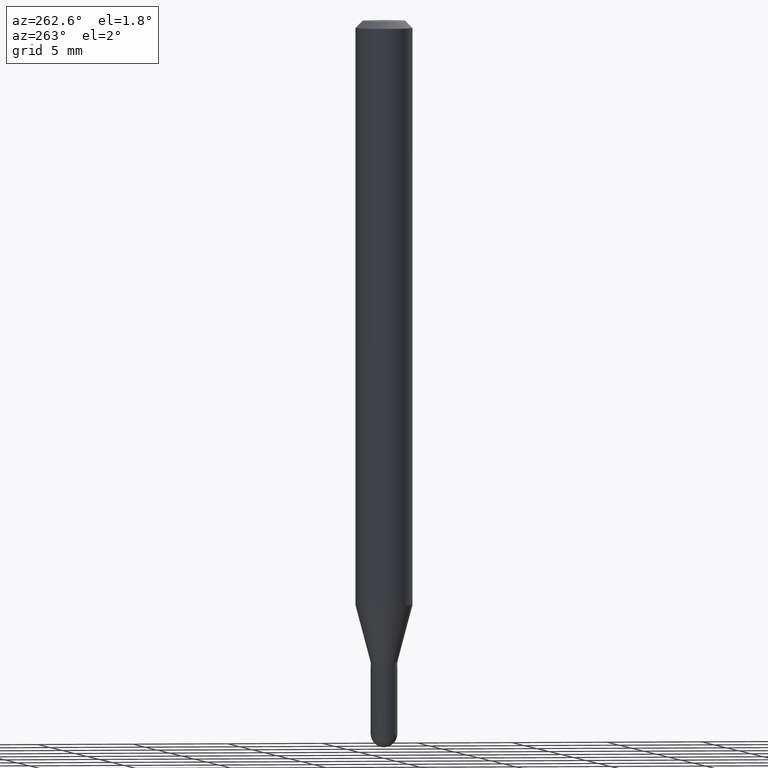
[diagram: clean part render]
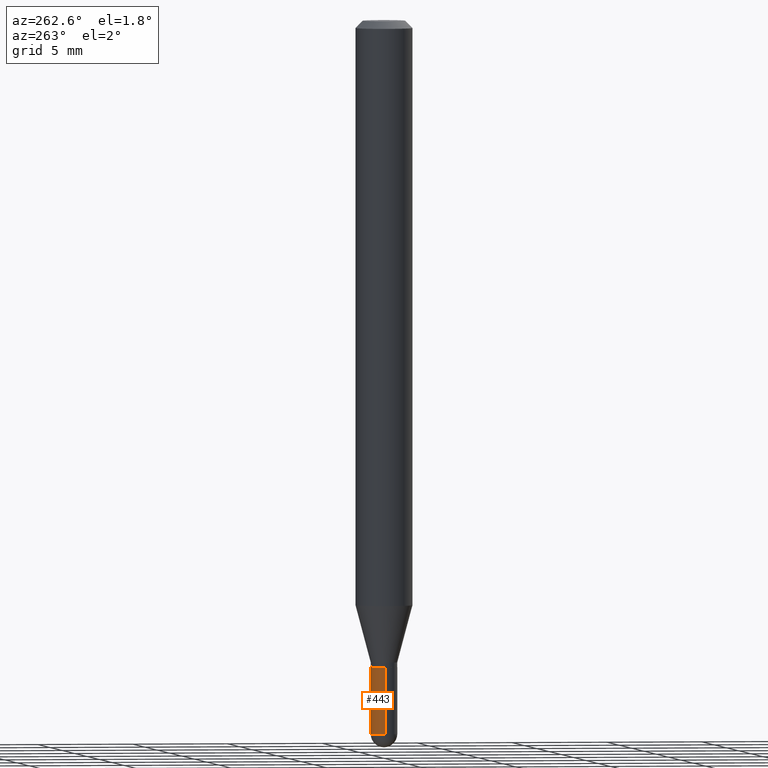
[diagram: same view with one face highlighted and labeled with its STEP entity id]
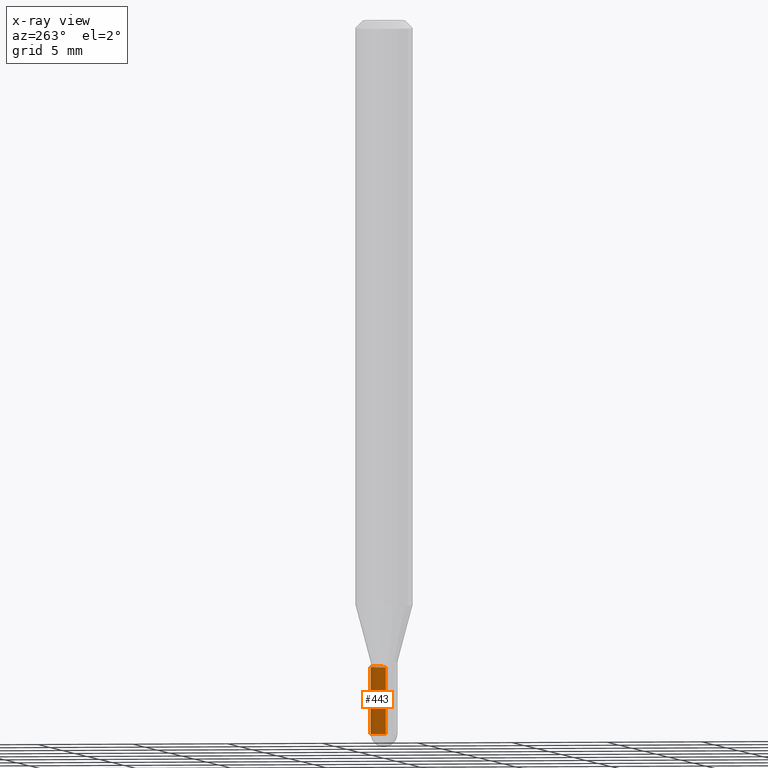
[diagram: x-ray of the same camera — body ghosted, the highlighted face saturated]
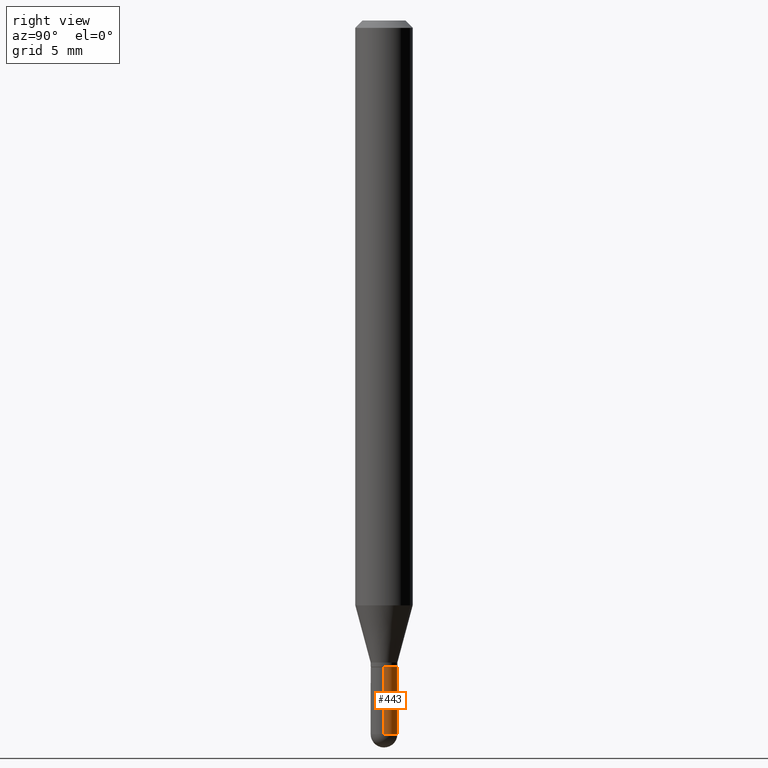
[diagram: same view with one face highlighted and labeled with its STEP entity id]
A machine part, auxiliary view. The second image highlights one B-rep face of the part: STEP entity #443.
The next image is the same camera in x-ray: the body ghosted, the highlighted face saturated — about 0% of this face is hidden behind the body in this view.
A second angle (right view) of the same face is appended — the face is thin or edge-on in the first view.
In plain terms, the highlighted cylindrical surface (edge-blend (fillet) strip) has radius 0.6998 mm, axis along (-0, 0, 1).
Its self-contained STEP definition (entity closure, byte-faithful):
#15 = VERTEX_POINT ( 'NONE', #325 ) ;
#26 = ORIENTED_EDGE ( 'NONE', *, *, #152, .T. ) ;
#34 = CIRCLE ( 'NONE', #88, 0.02755000000000000851 ) ;
#36 = DIRECTION ( 'NONE',  ( 1.000000000000000000, -6.982962677686265922E-15, 4.876176775795935793E-29 ) ) ;
#57 = VECTOR ( 'NONE', #207, 39.37007874015748143 ) ;
#61 = DIRECTION ( 'NONE',  ( 1.000000000000000000, -6.982962677686256455E-15, 0.000000000000000000 ) ) ;
#63 = AXIS2_PLACEMENT_3D ( 'NONE', #95, #413, #61 ) ;
#68 = EDGE_CURVE ( 'NONE', #125, #299, #323, .T. ) ;
#70 = VERTEX_POINT ( 'NONE', #435 ) ;
#71 = CARTESIAN_POINT ( 'NONE',  ( 3.591293215323181808E-29, -5.127414920158100475E-15, -1.468549999999999800 ) ) ;
#88 = AXIS2_PLACEMENT_3D ( 'NONE', #71, #349, #112 ) ;
#95 = CARTESIAN_POINT ( 'NONE',  ( 3.254185340390560677E-29, -4.646114217598572614E-15, -1.330699999999999772 ) ) ;
#112 = DIRECTION ( 'NONE',  ( 1.000000000000000000, -6.982962677686254878E-15, 0.000000000000000000 ) ) ;
#117 = DIRECTION ( 'NONE',  ( -2.445468806185136597E-29, 3.491481338843145583E-15, 1.000000000000000000 ) ) ;
#125 = VERTEX_POINT ( 'NONE', #439 ) ;
#146 = ORIENTED_EDGE ( 'NONE', *, *, #334, .F. ) ;
#152 = EDGE_CURVE ( 'NONE', #70, #125, #403, .T. ) ;
#157 = CARTESIAN_POINT ( 'NONE',  ( 3.591293215323181808E-29, -5.127414920158100475E-15, -1.468549999999999800 ) ) ;
#162 = ORIENTED_EDGE ( 'NONE', *, *, #253, .F. ) ;
#207 = DIRECTION ( 'NONE',  ( -2.445468806185136877E-29, 3.491481338843145188E-15, 1.000000000000000000 ) ) ;
#221 = CYLINDRICAL_SURFACE ( 'NONE', #313, 0.02755000000000000851 ) ;
#225 = CARTESIAN_POINT ( 'NONE',  ( 0.000000000000000000, 0.000000000000000000, 0.000000000000000000 ) ) ;
#231 = VECTOR ( 'NONE', #275, 39.37007874015748143 ) ;
#248 = LINE ( 'NONE', #409, #57 ) ;
#253 = EDGE_CURVE ( 'NONE', #448, #299, #297, .T. ) ;
#268 = CARTESIAN_POINT ( 'NONE',  ( 0.02755000000000000157, -4.838494839368829407E-15, -1.330699999999999772 ) ) ;
#271 = DIRECTION ( 'NONE',  ( 1.000000000000000000, -6.982962677686254878E-15, 0.000000000000000000 ) ) ;
#272 = DIRECTION ( 'NONE',  ( -2.445468806185136597E-29, 3.491481338843145583E-15, 1.000000000000000000 ) ) ;
#275 = DIRECTION ( 'NONE',  ( -2.445468806185136877E-29, 3.491481338843145188E-15, 1.000000000000000000 ) ) ;
#297 = CIRCLE ( 'NONE', #63, 0.02755000000000000157 ) ;
#299 = VERTEX_POINT ( 'NONE', #451 ) ;
#313 = AXIS2_PLACEMENT_3D ( 'NONE', #225, #272, #36 ) ;
#319 = CARTESIAN_POINT ( 'NONE',  ( -0.02755000000000000851, 1.957545237019076617E-16, -1.355166617365226740E-30 ) ) ;
#323 = LINE ( 'NONE', #319, #231 ) ;
#325 = CARTESIAN_POINT ( 'NONE',  ( 0.02755000000000000851, -5.079145190648592548E-15, -1.468549999999999800 ) ) ;
#334 = EDGE_CURVE ( 'NONE', #15, #448, #248, .T. ) ;
#340 = ORIENTED_EDGE ( 'NONE', *, *, #419, .T. ) ;
#344 = AXIS2_PLACEMENT_3D ( 'NONE', #157, #117, #271 ) ;
#349 = DIRECTION ( 'NONE',  ( -2.445468806185136597E-29, 3.491481338843145583E-15, 1.000000000000000000 ) ) ;
#364 = EDGE_LOOP ( 'NONE', ( #26, #482, #162, #146, #340 ) ) ;
#403 = CIRCLE ( 'NONE', #344, 0.02755000000000000851 ) ;
#409 = CARTESIAN_POINT ( 'NONE',  ( 0.02755000000000000851, -1.923806217702566944E-16, 1.343386701731780684E-30 ) ) ;
#413 = DIRECTION ( 'NONE',  ( -2.445468806185136597E-29, 3.491481338843145583E-15, 1.000000000000000000 ) ) ;
#419 = EDGE_CURVE ( 'NONE', #15, #70, #34, .T. ) ;
#435 = CARTESIAN_POINT ( 'NONE',  ( 1.957545237019436781E-16, 0.02754999999999490148, -1.468549999999999800 ) ) ;
#439 = CARTESIAN_POINT ( 'NONE',  ( -0.02755000000000000851, -4.691010045176429992E-15, -1.468549999999999800 ) ) ;
#443 = ADVANCED_FACE ( 'NONE', ( #507 ), #221, .T. ) ;
#448 = VERTEX_POINT ( 'NONE', #268 ) ;
#451 = CARTESIAN_POINT ( 'NONE',  ( -0.02755000000000000157, -4.691010045176429992E-15, -1.330699999999999772 ) ) ;
#482 = ORIENTED_EDGE ( 'NONE', *, *, #68, .T. ) ;
#507 = FACE_OUTER_BOUND ( 'NONE', #364, .T. ) ;